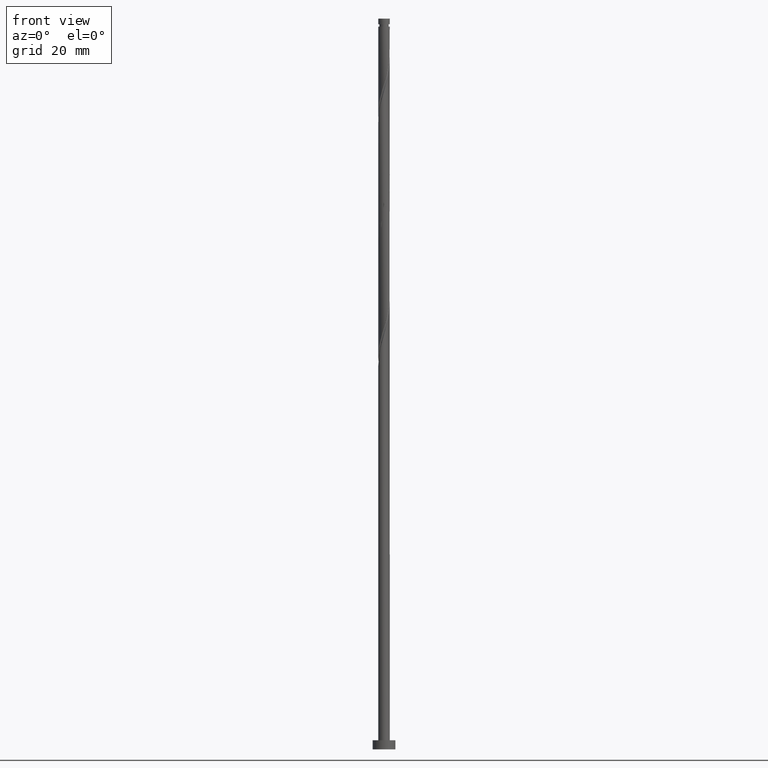
[diagram: clean part render]
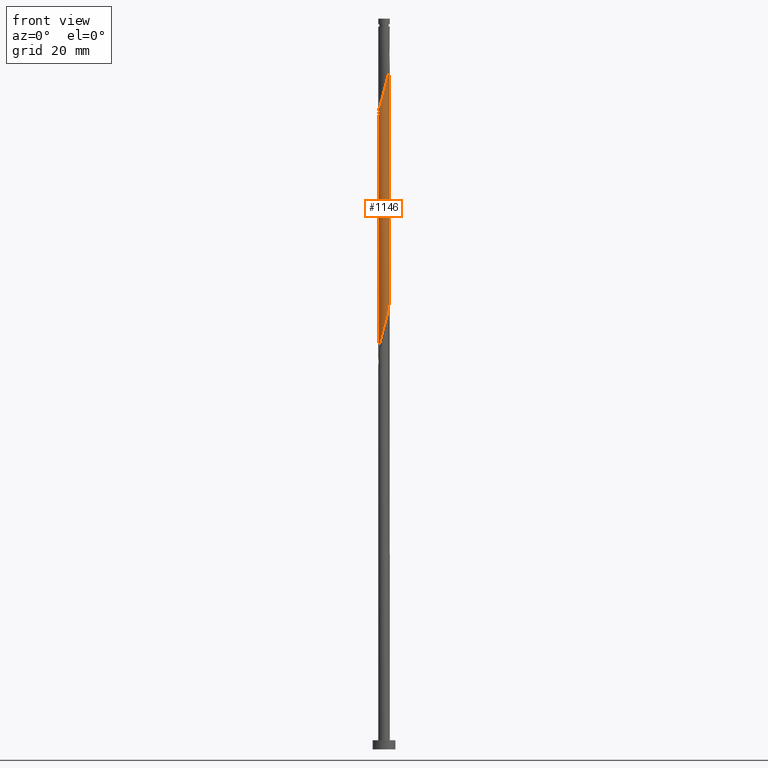
[diagram: same view with one face highlighted and labeled with its STEP entity id]
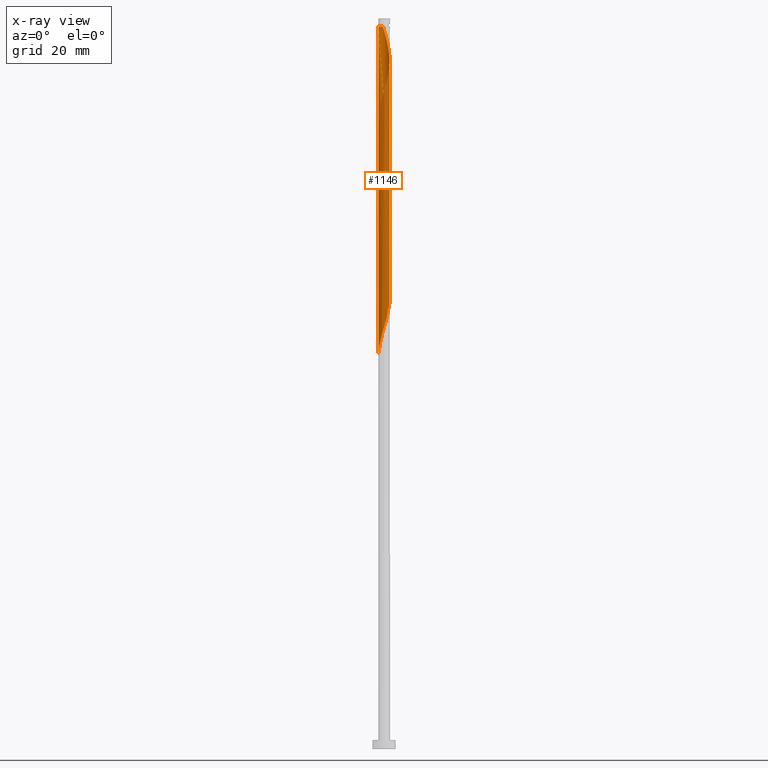
[diagram: x-ray of the same camera — body ghosted, the highlighted face saturated]
A machine part, front view. The second image highlights one B-rep face of the part: STEP entity #1146.
The next image is the same camera in x-ray: the body ghosted, the highlighted face saturated — about 0% of this face is hidden behind the body in this view.
In plain terms, the highlighted cylindrical surface (bore or boss wall) has radius 1.25 mm, axis along (-0, -0, -1).
Its self-contained STEP definition (entity closure, byte-faithful):
#7 = CARTESIAN_POINT ( 'NONE',  ( -0.5837932458153761717, -1.105298804007471603, 117.0515403968000072 ) ) ;
#11 = VERTEX_POINT ( 'NONE', #1020 ) ;
#13 = CARTESIAN_POINT ( 'NONE',  ( -0.4248752694204975255, -1.189235600936594528, 117.6576010028606163 ) ) ;
#20 = CARTESIAN_POINT ( 'NONE',  ( -0.1064515184461264502, 1.245458981348047001, 106.1424494877090581 ) ) ;
#24 = CARTESIAN_POINT ( 'NONE',  ( 0.7628986777514710216, -0.9901947321032651406, 121.9000252452848230 ) ) ;
#32 = CARTESIAN_POINT ( 'NONE',  ( 0.07261844913281294278, 1.260764399063404761, 132.2030555483151204 ) ) ;
#33 = CARTESIAN_POINT ( 'NONE',  ( -1.249999999999999778, 1.297504196028295292E-15, 85.77978275488877102 ) ) ;
#35 = CARTESIAN_POINT ( 'NONE',  ( 1.250000000000000000, 1.530808498934191571E-16, 160.0000000000000000 ) ) ;
#50 = CARTESIAN_POINT ( 'NONE',  ( -1.250000000000000000, 0.000000000000000000, 160.0000000000000000 ) ) ;
#59 = CARTESIAN_POINT ( 'NONE',  ( -1.217632374089874903, -0.2826152889853171257, 86.74851009376968136 ) ) ;
#66 = CARTESIAN_POINT ( 'NONE',  ( 0.4530258272359606875, 1.165018283057042137, 155.8394191846788317 ) ) ;
#78 = CARTESIAN_POINT ( 'NONE',  ( 1.247931635353089153, 0.07187929802779795263, 150.9909343361939875 ) ) ;
#81 = CARTESIAN_POINT ( 'NONE',  ( -1.000377128850253206, -0.7707437376803577544, 88.56669191195149438 ) ) ;
#86 = CARTESIAN_POINT ( 'NONE',  ( 0.7427112222102560946, -1.021362007078350675, 146.7485100937697098 ) ) ;
#96 = CARTESIAN_POINT ( 'NONE',  ( 1.176998429982671457, -0.4576843944450091906, 149.1727525180121461 ) ) ;
#103 = CARTESIAN_POINT ( 'NONE',  ( 0.07261844913281287339, -1.260764399063406760, 144.3242676695272735 ) ) ;
#144 = CARTESIAN_POINT ( 'NONE',  ( 1.247931635353086932, -0.07187929802779845223, 125.5363888816484774 ) ) ;
#151 = CARTESIAN_POINT ( 'NONE',  ( -1.176998429982669903, -0.4576843944450086910, 114.0212373664969618 ) ) ;
#158 = CARTESIAN_POINT ( 'NONE',  ( 0.7427112222102548733, 1.021362007078349121, 103.1121464574060411 ) ) ;
#174 = CARTESIAN_POINT ( 'NONE',  ( 0.9052671870560883294, -0.8805064617251373571, 95.83941918467878907 ) ) ;
#185 = CARTESIAN_POINT ( 'NONE',  ( 0.7628986777514725759, 0.9901947321032669169, 154.6272979725575283 ) ) ;
#194 = CARTESIAN_POINT ( 'NONE',  ( -0.2855214860250664399, -1.230153563632689906, 143.1121464574060269 ) ) ;
#197 = CARTESIAN_POINT ( 'NONE',  ( 1.177130897255197484, -0.4205506517973466862, 97.65760100286060208 ) ) ;
#213 = CARTESIAN_POINT ( 'NONE',  ( 1.177130897255199260, 0.4205506517973469083, 152.2030555483151488 ) ) ;
#219 = DIRECTION ( 'NONE',  ( -1.000000000000000000, 0.000000000000000000, 0.000000000000000000 ) ) ;
#238 = VERTEX_POINT ( 'NONE', #33 ) ;
#250 = CARTESIAN_POINT ( 'NONE',  ( 1.217632374089875125, 0.2826152889853167927, 126.7485100937696814 ) ) ;
#262 = CARTESIAN_POINT ( 'NONE',  ( 0.2487468592766555742, 1.224999999999999867, 104.9303282755878683 ) ) ;
#266 = EDGE_CURVE ( 'NONE', #892, #238, #1466, .T. ) ;
#276 = ORIENTED_EDGE ( 'NONE', *, *, #1001, .F. ) ;
#277 = CARTESIAN_POINT ( 'NONE',  ( 0.7628986777514710216, -0.9901947321032651406, 95.23335857861815157 ) ) ;
#290 = EDGE_CURVE ( 'NONE', #1102, #238, #306, .T. ) ;
#294 = CARTESIAN_POINT ( 'NONE',  ( 0.4530258272359600213, -1.165018283057040360, 94.02123736649699026 ) ) ;
#302 = CARTESIAN_POINT ( 'NONE',  ( -1.250000000000001998, -0.03596940815477719933, 137.5363051343385621 ) ) ;
#306 = LINE ( 'NONE', #50, #1217 ) ;
#312 = CARTESIAN_POINT ( 'NONE',  ( -1.250000000000001554, 7.740154714059228246E-16, 137.4142071296203369 ) ) ;
#316 = CARTESIAN_POINT ( 'NONE',  ( 1.250000000000000000, -1.544291737635982439E-15, 125.7797827548887710 ) ) ;
#326 = CARTESIAN_POINT ( 'NONE',  ( -1.116664842001300784, 0.5897965240134714904, 137.0515403967999930 ) ) ;
#331 = CARTESIAN_POINT ( 'NONE',  ( 0.000000000000000000, 0.000000000000000000, 158.2636616089212112 ) ) ;
#364 = CARTESIAN_POINT ( 'NONE',  ( 0.8715441755302536508, 0.8960528723793532713, 129.1727525180121177 ) ) ;
#366 = CARTESIAN_POINT ( 'NONE',  ( -0.07261844913281331748, -1.260764399063404761, 118.8697222149818202 ) ) ;
#377 = DIRECTION ( 'NONE',  ( -0.000000000000000000, -0.000000000000000000, -1.000000000000000000 ) ) ;
#381 = CARTESIAN_POINT ( 'NONE',  ( -1.088687779416461110, -0.6142140660626831394, 114.6272979725575709 ) ) ;
#383 = LINE ( 'NONE', #35, #992 ) ;
#392 = CARTESIAN_POINT ( 'NONE',  ( 1.000377128850252761, 0.7707437376803583096, 101.9000252452848372 ) ) ;
#417 = CARTESIAN_POINT ( 'NONE',  ( -0.7427112222102548733, -1.021362007078349121, 89.77881312407269832 ) ) ;
#431 = CARTESIAN_POINT ( 'NONE',  ( -0.7628986777514726869, -0.9901947321032662508, 141.2939646392242707 ) ) ;
#441 = CARTESIAN_POINT ( 'NONE',  ( 1.000377128850254538, -0.7707437376803593088, 147.9606313058909279 ) ) ;
#456 = ORIENTED_EDGE ( 'NONE', *, *, #1282, .T. ) ;
#473 = CARTESIAN_POINT ( 'NONE',  ( -1.237596952509094406, 0.2513047795812222152, 138.2636616089212112 ) ) ;
#481 = CARTESIAN_POINT ( 'NONE',  ( -1.258266318197080569, -0.1075461835256258658, 112.8091161543757295 ) ) ;
#494 = CARTESIAN_POINT ( 'NONE',  ( -0.6205301684468543799, 1.099883002481392147, 107.9606313058909421 ) ) ;
#500 = CARTESIAN_POINT ( 'NONE',  ( -1.237596952509094406, 0.2513047795812222152, 111.5969949422545113 ) ) ;
#512 = AXIS2_PLACEMENT_3D ( 'NONE', #1250, #547, #219 ) ;
#513 = CARTESIAN_POINT ( 'NONE',  ( -0.5837932458153761717, -1.105298804007471603, 90.38487373013333581 ) ) ;
#529 = DIRECTION ( 'NONE',  ( -0.000000000000000000, -0.000000000000000000, -1.000000000000000000 ) ) ;
#537 = CARTESIAN_POINT ( 'NONE',  ( 1.258266318197082345, -0.1075461835256263515, 150.3848737301333358 ) ) ;
#539 = CARTESIAN_POINT ( 'NONE',  ( 1.247931635353086932, -0.07187929802779845223, 98.86972221498183444 ) ) ;
#547 = DIRECTION ( 'NONE',  ( -0.000000000000000000, -0.000000000000000000, -1.000000000000000000 ) ) ;
#551 = CARTESIAN_POINT ( 'NONE',  ( -1.010966014528694723, 0.7351514928693043682, 136.4454797907394266 ) ) ;
#557 = CARTESIAN_POINT ( 'NONE',  ( 1.217632374089876901, -0.2826152889853179029, 149.7788131240727409 ) ) ;
#562 = ORIENTED_EDGE ( 'NONE', *, *, #584, .F. ) ;
#564 = CARTESIAN_POINT ( 'NONE',  ( 0.4248752694204978586, -1.189235600936596526, 145.5363888816484916 ) ) ;
#569 =( BOUNDED_CURVE ( )  B_SPLINE_CURVE ( 2, ( #312, #302, #911, #1510, #1246, #773, #1254, #782, #431, #1263, #677, #194, #1482, #103, #884, #564, #1143, #86, #1503, #441, #1379, #96, #557, #537, #78, #1271, #213, #643, #1351, #653, #185, #1128, #66, #1017, #1494, #904, #671 ),
 .UNSPECIFIED., .F., .T. ) 
 B_SPLINE_CURVE_WITH_KNOTS ( ( 3, 2, 2, 2, 2, 2, 2, 2, 2, 2, 2, 2, 2, 2, 2, 2, 2, 2, 3 ),
 ( 0.5545252162417513286, 0.5568181818181818787, 0.5681818181818181213, 0.5795454545454545858, 0.5909090909090908283, 0.6022727272727272929, 0.6136363636363637575, 0.6250000000000001110, 0.6363636363636364646, 0.6477272727272728181, 0.6590909090909092827, 0.6704545454545455252, 0.6818181818181819898, 0.6931818181818182323, 0.7045454545454548079, 0.7159090909090910504, 0.7272727272727275150, 0.7386363636363638685, 0.7500000000000002220 ),
 .UNSPECIFIED. ) 
 CURVE ( )  GEOMETRIC_REPRESENTATION_ITEM ( )  RATIONAL_B_SPLINE_CURVE ( ( 0.9061101570135796646, 0.9072237824201618839, 0.9090909090909393697, 0.8998376744372414970, 0.9090909090909393697, 0.8998376744372414970, 0.9090909090909393697, 0.8998376744372414970, 0.9090909090909393697, 0.8998376744372414970, 0.9090909090909393697, 0.8998376744372414970, 0.9090909090909393697, 0.8998376744372414970, 0.9090909090909393697, 0.8998376744372414970, 0.9090909090909393697, 0.8998376744372414970, 0.9090909090909393697, 0.8998376744372414970, 0.9090909090909393697, 0.8998376744372414970, 0.9090909090909393697, 0.8998376744372414970, 0.9090909090909393697, 0.8998376744372414970, 0.9090909090909393697, 0.8998376744372414970, 0.9090909090909393697, 0.8998376744372414970, 0.9090909090909393697, 0.8998376744372414970, 0.9090909090909393697, 0.8998376744372414970, 0.9090909090909393697, 0.8998376744372412750, 0.9090909090909395918 ) ) 
 REPRESENTATION_ITEM ( '' )  );
#584 = EDGE_CURVE ( 'NONE', #902, #585, #1120, .T. ) ;
#585 = VERTEX_POINT ( 'NONE', #1486 ) ;
#590 = CARTESIAN_POINT ( 'NONE',  ( -1.116664842001300784, 0.5897965240134714904, 110.3848737301333074 ) ) ;
#597 = CARTESIAN_POINT ( 'NONE',  ( 1.116664842001301006, -0.5897965240134712683, 123.7182070634666786 ) ) ;
#606 = CARTESIAN_POINT ( 'NONE',  ( -1.247931635353086932, 0.07187929802779827182, 112.2030555483151630 ) ) ;
#616 = CARTESIAN_POINT ( 'NONE',  ( -1.249999999999999778, -4.374870055772637902E-16, 139.1131160882221138 ) ) ;
#620 = CARTESIAN_POINT ( 'NONE',  ( 0.1064515184461260477, -1.245458981348046557, 92.80911615437572948 ) ) ;
#626 = CARTESIAN_POINT ( 'NONE',  ( 1.176998429982670125, 0.4576843944450079138, 100.6879040331636190 ) ) ;
#634 = AXIS2_PLACEMENT_3D ( 'NONE', #331, #529, #1149 ) ;
#636 = CARTESIAN_POINT ( 'NONE',  ( 1.237596952509094406, -0.2513047795812223262, 98.26366160892122537 ) ) ;
#643 = CARTESIAN_POINT ( 'NONE',  ( 1.116664842001303670, 0.5897965240134717124, 152.8091161543757437 ) ) ;
#647 = ORIENTED_EDGE ( 'NONE', *, *, #266, .F. ) ;
#653 = CARTESIAN_POINT ( 'NONE',  ( 0.9052671870560904388, 0.8805064617251380232, 154.0212373664969903 ) ) ;
#657 = CARTESIAN_POINT ( 'NONE',  ( 1.116664842001301006, -0.5897965240134712683, 97.05154039680000722 ) ) ;
#671 = CARTESIAN_POINT ( 'NONE',  ( -0.2487468592766928777, 1.225000000000376676, 158.2636616089212112 ) ) ;
#677 = CARTESIAN_POINT ( 'NONE',  ( -0.4530258272359612426, -1.165018283057042137, 142.5060858513454605 ) ) ;
#703 = FACE_OUTER_BOUND ( 'NONE', #1077, .T. ) ;
#704 = CARTESIAN_POINT ( 'NONE',  ( 0.5837932458153761717, 1.105298804007471603, 130.3848737301333358 ) ) ;
#710 = CARTESIAN_POINT ( 'NONE',  ( 1.176998429982670125, 0.4576843944450079138, 127.3545706998302762 ) ) ;
#714 = CARTESIAN_POINT ( 'NONE',  ( 1.237596952509094406, -0.2513047795812223262, 124.9303282755878968 ) ) ;
#717 = CIRCLE ( 'NONE', #634, 1.249999999999992673 ) ;
#718 = CARTESIAN_POINT ( 'NONE',  ( 1.250000000000000444, 0.1431611592314023795, 126.2657427078600278 ) ) ;
#719 = ORIENTED_EDGE ( 'NONE', *, *, #961, .F. ) ;
#720 = CARTESIAN_POINT ( 'NONE',  ( 1.010966014528694723, -0.7351514928693042572, 123.1121464574060411 ) ) ;
#726 = CARTESIAN_POINT ( 'NONE',  ( -0.2487468592766554076, -1.224999999999999867, 118.2636616089211827 ) ) ;
#731 =( BOUNDED_CURVE ( )  B_SPLINE_CURVE ( 2, ( #616, #856, #803, #473, #1045, #326, #551, #1397, #1288, #1167, #1531, #853, #1093, #32, #977, #1303, #704, #833, #364, #1071, #1197, #710, #250, #718, #986 ),
 .UNSPECIFIED., .F., .T. ) 
 B_SPLINE_CURVE_WITH_KNOTS ( ( 3, 2, 2, 2, 2, 2, 2, 2, 2, 2, 2, 2, 3 ),
 ( 0.4295252162417512731, 0.4318181818181818232, 0.4431818181818181768, 0.4545454545454545303, 0.4659090909090908839, 0.4772727272727272929, 0.4886363636363636465, 0.5000000000000000000, 0.5113636363636363535, 0.5227272727272727071, 0.5340909090909090606, 0.5454545454545454142, 0.5545252162417513286 ),
 .UNSPECIFIED. ) 
 CURVE ( )  GEOMETRIC_REPRESENTATION_ITEM ( )  RATIONAL_B_SPLINE_CURVE ( ( 0.9061101570135733363, 0.9072237824201555556, 0.9090909090909331525, 0.8998376744372353908, 0.9090909090909331525, 0.8998376744372353908, 0.9090909090909331525, 0.8998376744372353908, 0.9090909090909331525, 0.8998376744372353908, 0.9090909090909331525, 0.8998376744372353908, 0.9090909090909331525, 0.8998376744372353908, 0.9090909090909331525, 0.8998376744372353908, 0.9090909090909331525, 0.8998376744372353908, 0.9090909090909331525, 0.8998376744372353908, 0.9090909090909331525, 0.8998376744372353908, 0.9090909090909331525, 0.9017048011080128767, 0.9061101570135735583 ) ) 
 REPRESENTATION_ITEM ( '' )  );
#735 = CARTESIAN_POINT ( 'NONE',  ( 0.1064515184461260477, -1.245458981348046557, 119.4757828210424009 ) ) ;
#746 = CARTESIAN_POINT ( 'NONE',  ( 0.4248752694204977476, 1.189235600936594528, 104.3242676695272593 ) ) ;
#769 = DIRECTION ( 'NONE',  ( -0.000000000000000000, -0.000000000000000000, -1.000000000000000000 ) ) ;
#773 = CARTESIAN_POINT ( 'NONE',  ( -1.116664842001303448, -0.5897965240134718234, 139.4757828210424293 ) ) ;
#778 = CARTESIAN_POINT ( 'NONE',  ( 1.258266318197080791, 0.1075461835256254772, 99.47578282104242930 ) ) ;
#782 = CARTESIAN_POINT ( 'NONE',  ( -0.9052671870560899947, -0.8805064617251384673, 140.6879040331636190 ) ) ;
#788 = CARTESIAN_POINT ( 'NONE',  ( -1.249999999999992673, 0.000000000000000000, 158.2636616089212112 ) ) ;
#803 = CARTESIAN_POINT ( 'NONE',  ( -1.247931635353086932, 0.07187929802779827182, 138.8697222149818060 ) ) ;
#833 = CARTESIAN_POINT ( 'NONE',  ( 0.7427112222102548733, 1.021362007078349121, 129.7788131240727409 ) ) ;
#841 = CARTESIAN_POINT ( 'NONE',  ( -0.7427112222102548733, -1.021362007078349121, 116.4454797907394408 ) ) ;
#850 = CARTESIAN_POINT ( 'NONE',  ( 0.9052671870560883294, -0.8805064617251373571, 122.5060858513454320 ) ) ;
#853 = CARTESIAN_POINT ( 'NONE',  ( -0.2855214860250658293, 1.230153563632687908, 133.4151767604363386 ) ) ;
#854 = CARTESIAN_POINT ( 'NONE',  ( -0.4530258272359600213, 1.165018283057040360, 107.3545706998303046 ) ) ;
#856 = CARTESIAN_POINT ( 'NONE',  ( -1.250000000000000000, 0.03596940815477713688, 138.9910180835039171 ) ) ;
#871 = CARTESIAN_POINT ( 'NONE',  ( 1.217632374089875125, 0.2826152889853167927, 100.0818434271030384 ) ) ;
#884 = CARTESIAN_POINT ( 'NONE',  ( 0.2487468592766552966, -1.225000000000002309, 144.9303282755878968 ) ) ;
#887 = CARTESIAN_POINT ( 'NONE',  ( -0.8715441755302540949, -0.8960528723793532713, 89.17275251801211766 ) ) ;
#892 = VERTEX_POINT ( 'NONE', #316 ) ;
#902 = VERTEX_POINT ( 'NONE', #788 ) ;
#904 = CARTESIAN_POINT ( 'NONE',  ( -0.07261844913281625957, 1.260764399063406982, 157.6576010028606447 ) ) ;
#911 = CARTESIAN_POINT ( 'NONE',  ( -1.247931635353089153, -0.07187929802779809141, 137.6576010028606731 ) ) ;
#956 = CARTESIAN_POINT ( 'NONE',  ( -0.9052671870560882184, 0.8805064617251375791, 109.1727525180121461 ) ) ;
#961 = EDGE_CURVE ( 'NONE', #11, #892, #383, .T. ) ;
#966 = CARTESIAN_POINT ( 'NONE',  ( 1.250000000000000000, -1.544291737635982439E-15, 125.7797827548887710 ) ) ;
#971 = CARTESIAN_POINT ( 'NONE',  ( -0.2855214860250658293, 1.230153563632687908, 106.7485100937697098 ) ) ;
#977 = CARTESIAN_POINT ( 'NONE',  ( 0.2487468592766555742, 1.224999999999999867, 131.5969949422545255 ) ) ;
#979 = CARTESIAN_POINT ( 'NONE',  ( -1.177130897255197484, 0.4205506517973465752, 110.9909343361939165 ) ) ;
#985 = CARTESIAN_POINT ( 'NONE',  ( 1.088687779416461110, 0.6142140660626834725, 101.2939646392242423 ) ) ;
#986 = CARTESIAN_POINT ( 'NONE',  ( 1.250000000000000000, -1.544291737635982439E-15, 125.7797827548887710 ) ) ;
#992 = VECTOR ( 'NONE', #377, 1000.000000000000000 ) ;
#1001 = EDGE_CURVE ( 'NONE', #585, #892, #731, .T. ) ;
#1003 = CARTESIAN_POINT ( 'NONE',  ( 0.2855214860250661069, -1.230153563632687685, 93.41517676043636698 ) ) ;
#1011 = CARTESIAN_POINT ( 'NONE',  ( -0.4248752694204975255, -1.189235600936594528, 90.99093433619394489 ) ) ;
#1017 = CARTESIAN_POINT ( 'NONE',  ( 0.2855214860250666620, 1.230153563632689684, 156.4454797907393981 ) ) ;
#1019 = CARTESIAN_POINT ( 'NONE',  ( -1.176998429982669903, -0.4576843944450086910, 87.35457069983030465 ) ) ;
#1020 = CARTESIAN_POINT ( 'NONE',  ( 1.250000000000000000, 1.530808498934191571E-16, 158.2636616089212112 ) ) ;
#1036 = CARTESIAN_POINT ( 'NONE',  ( -1.250000000000001554, 7.740154714059228246E-16, 137.4142071296203369 ) ) ;
#1045 = CARTESIAN_POINT ( 'NONE',  ( -1.177130897255197484, 0.4205506517973465752, 137.6576010028605594 ) ) ;
#1071 = CARTESIAN_POINT ( 'NONE',  ( 1.000377128850252761, 0.7707437376803583096, 128.5666919119515228 ) ) ;
#1073 = CARTESIAN_POINT ( 'NONE',  ( 0.2855214860250661069, -1.230153563632687685, 120.0818434271030100 ) ) ;
#1077 = EDGE_LOOP ( 'NONE', ( #562, #456, #1317, #1485, #647, #719, #1426, #276 ) ) ;
#1079 = CARTESIAN_POINT ( 'NONE',  ( 1.249999999999999778, -0.03596940815477907977, 125.6576847501705601 ) ) ;
#1087 = CARTESIAN_POINT ( 'NONE',  ( -1.010966014528694723, 0.7351514928693043682, 109.7788131240727125 ) ) ;
#1093 = CARTESIAN_POINT ( 'NONE',  ( -0.1064515184461264502, 1.245458981348047001, 132.8091161543757437 ) ) ;
#1102 = VERTEX_POINT ( 'NONE', #1036 ) ;
#1103 = CARTESIAN_POINT ( 'NONE',  ( -0.2487468592766554076, -1.224999999999999867, 91.59699494225453975 ) ) ;
#1120 = LINE ( 'NONE', #1473, #1286 ) ;
#1128 = CARTESIAN_POINT ( 'NONE',  ( 0.6205301684468550460, 1.099883002481394367, 155.2333585786182084 ) ) ;
#1130 = CARTESIAN_POINT ( 'NONE',  ( 1.010966014528694723, -0.7351514928693042572, 96.44547979073938393 ) ) ;
#1139 = CARTESIAN_POINT ( 'NONE',  ( -0.07261844913281331748, -1.260764399063404761, 92.20305554831516304 ) ) ;
#1143 = CARTESIAN_POINT ( 'NONE',  ( 0.5837932458153767268, -1.105298804007474267, 146.1424494877090865 ) ) ;
#1146 = ADVANCED_FACE ( 'NONE', ( #703 ), #1157, .T. ) ;
#1149 = DIRECTION ( 'NONE',  ( -1.000000000000000000, 0.000000000000000000, 0.000000000000000000 ) ) ;
#1157 = CYLINDRICAL_SURFACE ( 'NONE', #512, 1.250000000000000000 ) ;
#1167 = CARTESIAN_POINT ( 'NONE',  ( -0.6205301684468543799, 1.099883002481392147, 134.6272979725575283 ) ) ;
#1197 = CARTESIAN_POINT ( 'NONE',  ( 1.088687779416461110, 0.6142140660626834725, 127.9606313058908853 ) ) ;
#1199 = CARTESIAN_POINT ( 'NONE',  ( -0.8715441755302540949, -0.8960528723793532713, 115.8394191846787891 ) ) ;
#1208 = CARTESIAN_POINT ( 'NONE',  ( 0.5837932458153761717, 1.105298804007471603, 103.7182070634666928 ) ) ;
#1217 = VECTOR ( 'NONE', #1355, 1000.000000000000000 ) ;
#1243 = VERTEX_POINT ( 'NONE', #1369 ) ;
#1246 = CARTESIAN_POINT ( 'NONE',  ( -1.177130897255199038, -0.4205506517973470748, 138.8697222149818344 ) ) ;
#1250 = CARTESIAN_POINT ( 'NONE',  ( 0.000000000000000000, 0.000000000000000000, 160.0000000000000000 ) ) ;
#1254 = CARTESIAN_POINT ( 'NONE',  ( -1.010966014528696499, -0.7351514928693054785, 140.0818434271030242 ) ) ;
#1259 = CARTESIAN_POINT ( 'NONE',  ( -1.250000000000000444, -0.1431611592314027681, 86.26574270786007048 ) ) ;
#1263 = CARTESIAN_POINT ( 'NONE',  ( -0.6205301684468556012, -1.099883002481393923, 141.9000252452848372 ) ) ;
#1271 = CARTESIAN_POINT ( 'NONE',  ( 1.237596952509096404, 0.2513047795812221041, 151.5969949422545540 ) ) ;
#1282 = EDGE_CURVE ( 'NONE', #902, #1243, #717, .T. ) ;
#1286 = VECTOR ( 'NONE', #769, 1000.000000000000000 ) ;
#1288 = CARTESIAN_POINT ( 'NONE',  ( -0.7628986777514711326, 0.9901947321032649185, 135.2333585786181800 ) ) ;
#1303 = CARTESIAN_POINT ( 'NONE',  ( 0.4248752694204977476, 1.189235600936594528, 130.9909343361939307 ) ) ;
#1313 = CARTESIAN_POINT ( 'NONE',  ( -1.217632374089874903, -0.2826152889853171257, 113.4151767604363243 ) ) ;
#1317 = ORIENTED_EDGE ( 'NONE', *, *, #1335, .F. ) ;
#1323 = CARTESIAN_POINT ( 'NONE',  ( 0.07261844913281294278, 1.260764399063404761, 105.5363888816484916 ) ) ;
#1330 = CARTESIAN_POINT ( 'NONE',  ( 0.4530258272359600213, -1.165018283057040360, 120.6879040331636190 ) ) ;
#1335 = EDGE_CURVE ( 'NONE', #1102, #1243, #569, .T. ) ;
#1336 = CARTESIAN_POINT ( 'NONE',  ( 0.6205301684468541579, -1.099883002481392369, 94.62729797255758513 ) ) ;
#1343 = CARTESIAN_POINT ( 'NONE',  ( -1.088687779416461110, -0.6142140660626831394, 87.96063130589091372 ) ) ;
#1351 = CARTESIAN_POINT ( 'NONE',  ( 1.010966014528696721, 0.7351514928693050344, 153.4151767604363670 ) ) ;
#1355 = DIRECTION ( 'NONE',  ( -0.000000000000000000, -0.000000000000000000, -1.000000000000000000 ) ) ;
#1366 = CARTESIAN_POINT ( 'NONE',  ( -1.249999999999999556, 1.297504196028295489E-15, 85.77978275488877102 ) ) ;
#1369 = CARTESIAN_POINT ( 'NONE',  ( -0.2487468592766928777, 1.225000000000376676, 158.2636616089212112 ) ) ;
#1379 = CARTESIAN_POINT ( 'NONE',  ( 1.088687779416463108, -0.6142140660626845827, 148.5666919119515512 ) ) ;
#1397 = CARTESIAN_POINT ( 'NONE',  ( -0.9052671870560882184, 0.8805064617251375791, 135.8394191846787749 ) ) ;
#1421 = CARTESIAN_POINT ( 'NONE',  ( 0.6205301684468541579, -1.099883002481392369, 121.2939646392242281 ) ) ;
#1426 = ORIENTED_EDGE ( 'NONE', *, *, #961, .T. ) ;
#1429 = CARTESIAN_POINT ( 'NONE',  ( 1.177130897255197484, -0.4205506517973466862, 124.3242676695272593 ) ) ;
#1434 = CARTESIAN_POINT ( 'NONE',  ( -0.7628986777514711326, 0.9901947321032649185, 108.5666919119514944 ) ) ;
#1440 = CARTESIAN_POINT ( 'NONE',  ( -1.000377128850253206, -0.7707437376803577544, 115.2333585786181942 ) ) ;
#1448 = CARTESIAN_POINT ( 'NONE',  ( 0.8715441755302536508, 0.8960528723793532713, 102.5060858513454463 ) ) ;
#1466 =( BOUNDED_CURVE ( )  B_SPLINE_CURVE ( 2, ( #966, #1079, #144, #714, #1429, #597, #720, #850, #24, #1421, #1330, #1073, #735, #366, #726, #13, #7, #841, #1199, #1440, #381, #151, #1313, #481, #606, #500, #979, #590, #1087, #956, #1434, #494, #854, #971, #20, #1323, #262, #746, #1208, #158, #1448, #392, #985, #626, #871, #778, #539, #636, #197, #657, #1130, #174, #277, #1336, #294, #1003, #620, #1139, #1103, #1011, #513, #417, #887, #81, #1343, #1019, #59, #1259, #1366 ),
 .UNSPECIFIED., .F., .T. ) 
 B_SPLINE_CURVE_WITH_KNOTS ( ( 3, 2, 2, 2, 2, 2, 2, 2, 2, 2, 2, 2, 2, 2, 2, 2, 2, 2, 2, 2, 2, 2, 2, 2, 2, 2, 2, 2, 2, 2, 2, 2, 2, 2, 3 ),
 ( 0.5545252162417513286, 0.5568181818181817677, 0.5681818181818182323, 0.5795454545454545858, 0.5909090909090909394, 0.6022727272727272929, 0.6136363636363636465, 0.6250000000000000000, 0.6363636363636363535, 0.6477272727272727071, 0.6590909090909090606, 0.6704545454545454142, 0.6818181818181817677, 0.6931818181818182323, 0.7045454545454545858, 0.7159090909090909394, 0.7272727272727272929, 0.7386363636363636465, 0.7500000000000000000, 0.7613636363636363535, 0.7727272727272727071, 0.7840909090909090606, 0.7954545454545454142, 0.8068181818181817677, 0.8181818181818182323, 0.8295454545454545858, 0.8409090909090909394, 0.8522727272727272929, 0.8636363636363636465, 0.8750000000000000000, 0.8863636363636363535, 0.8977272727272727071, 0.9090909090909091717, 0.9204545454545454142, 0.9295252162417513286 ),
 .UNSPECIFIED. ) 
 CURVE ( )  GEOMETRIC_REPRESENTATION_ITEM ( )  RATIONAL_B_SPLINE_CURVE ( ( 0.9061101570135735583, 0.9072237824201556666, 0.9090909090909331525, 0.8998376744372353908, 0.9090909090909331525, 0.8998376744372353908, 0.9090909090909331525, 0.8998376744372353908, 0.9090909090909331525, 0.8998376744372353908, 0.9090909090909331525, 0.8998376744372353908, 0.9090909090909331525, 0.8998376744372353908, 0.9090909090909331525, 0.8998376744372353908, 0.9090909090909331525, 0.8998376744372353908, 0.9090909090909331525, 0.8998376744372353908, 0.9090909090909331525, 0.8998376744372353908, 0.9090909090909331525, 0.8998376744372353908, 0.9090909090909331525, 0.8998376744372353908, 0.9090909090909331525, 0.8998376744372353908, 0.9090909090909331525, 0.8998376744372353908, 0.9090909090909331525, 0.8998376744372353908, 0.9090909090909331525, 0.8998376744372353908, 0.9090909090909331525, 0.8998376744372353908, 0.9090909090909331525, 0.8998376744372353908, 0.9090909090909331525, 0.8998376744372353908, 0.9090909090909331525, 0.8998376744372353908, 0.9090909090909331525, 0.8998376744372353908, 0.9090909090909331525, 0.8998376744372353908, 0.9090909090909331525, 0.8998376744372353908, 0.9090909090909331525, 0.8998376744372353908, 0.9090909090909331525, 0.8998376744372353908, 0.9090909090909331525, 0.8998376744372353908, 0.9090909090909331525, 0.8998376744372353908, 0.9090909090909331525, 0.8998376744372353908, 0.9090909090909331525, 0.8998376744372353908, 0.9090909090909331525, 0.8998376744372353908, 0.9090909090909331525, 0.8998376744372353908, 0.9090909090909331525, 0.8998376744372353908, 0.9090909090909331525, 0.9017048011080128767, 0.9061101570135735583 ) ) 
 REPRESENTATION_ITEM ( '' )  );
#1473 = CARTESIAN_POINT ( 'NONE',  ( -1.250000000000000000, 0.000000000000000000, 160.0000000000000000 ) ) ;
#1482 = CARTESIAN_POINT ( 'NONE',  ( -0.1064515184461268249, -1.245458981348048999, 143.7182070634666502 ) ) ;
#1485 = ORIENTED_EDGE ( 'NONE', *, *, #290, .T. ) ;
#1486 = CARTESIAN_POINT ( 'NONE',  ( -1.249999999999999778, -4.374870055772637902E-16, 139.1131160882221138 ) ) ;
#1494 = CARTESIAN_POINT ( 'NONE',  ( 0.1064515184461269220, 1.245458981348048999, 157.0515403968000214 ) ) ;
#1503 = CARTESIAN_POINT ( 'NONE',  ( 0.8715441755302550941, -0.8960528723793550476, 147.3545706998303331 ) ) ;
#1510 = CARTESIAN_POINT ( 'NONE',  ( -1.237596952509096404, -0.2513047795812223262, 138.2636616089212680 ) ) ;
#1531 = CARTESIAN_POINT ( 'NONE',  ( -0.4530258272359600213, 1.165018283057040360, 134.0212373664969618 ) ) ;